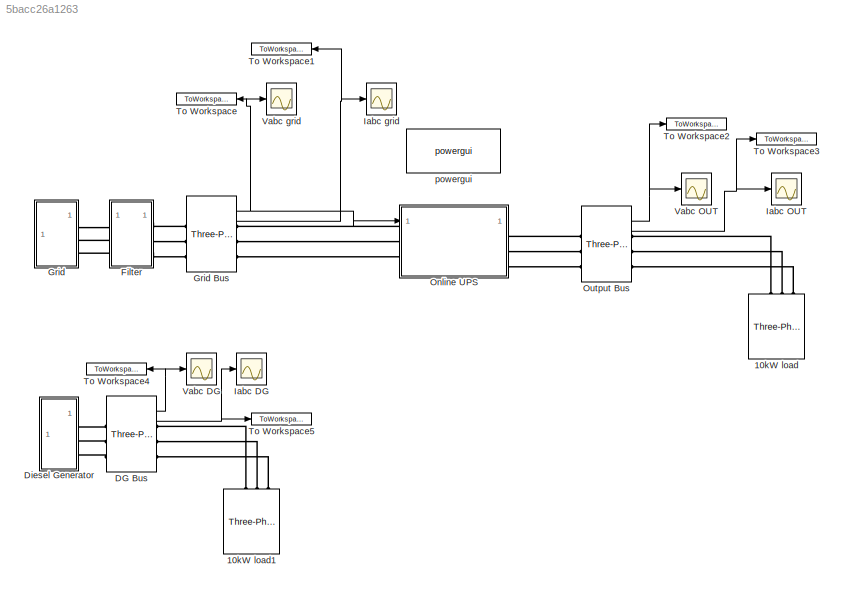
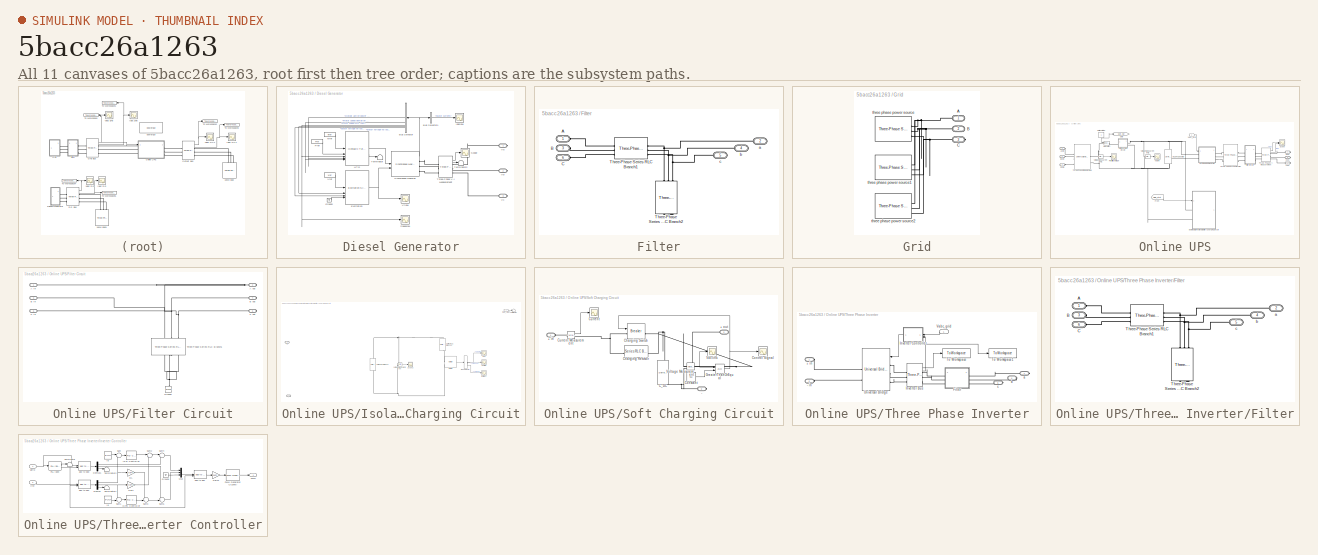
[diagram: thumbnail index - all 11 canvases of the model, root first then tree order]
MODEL slx_5bacc26a1263
KIND model
CONFIG AbsTol = auto
CONFIG EnableMultiTasking = off
CONFIG FixedStep = auto
CONFIG MaxStep = auto
CONFIG MinStep = auto
CONFIG RelTol = 1e-3
CONFIG SampleTimeConstraint = Unconstrained
CONFIG SolverName = VariableStepAuto
CONFIG StartTime = 0.0
CONFIG StopTime = 60*3
BLOCK [Reference] 10kW load  REF=spsThreePhaseSeriesRLCLoadLib/Three-Phase
Series RLC Load
  AttributesFormatString = \n
  LibrarySourceBlock = sps_lib/Passives/Three-Phase\nSeries RLC Load
  SourceBlock = spsThreePhaseSeriesRLCLoadLib/Three-Phase\nSeries RLC Load
  SourceType = Three-Phase Series RLC Load
BLOCK [Reference] 10kW load1  REF=spsThreePhaseSeriesRLCLoadLib/Three-Phase
Series RLC Load
  AttributesFormatString = \n
  LibrarySourceBlock = sps_lib/Passives/Three-Phase\nSeries RLC Load
  SourceBlock = spsThreePhaseSeriesRLCLoadLib/Three-Phase\nSeries RLC Load
  SourceType = Three-Phase Series RLC Load
BLOCK [Reference] DG Bus  REF=spsThreePhaseVIMeasurementLib/Three-Phase
V-I Measurement
  LibrarySourceBlock = sps_lib/Sensors and Measurements/Three-Phase\nV-I Measurement
  SourceBlock = spsThreePhaseVIMeasurementLib/Three-Phase\nV-I Measurement
  SourceType = Three-Phase VI Measurement
BLOCK [SubSystem] Diesel Generator
BLOCK [BusSelector] Diesel Generator/Bus Selector
  OutputSignals = Output active power   Peo (pu),Mechanical.Rotor speed deviation  dw (pu),Mechanical.Rotor speed  wm  (pu),dq0 components.Stator voltage  vd (pu),dq0 components.Stator voltage  vq (pu)
BLOCK [BusSelector] Diesel Generator/Bus Selector1
  OutputSignals = Stator current
BLOCK [Reference] Diesel Generator/Excitation   REF=spsExcitationSystemLib/Excitation System
  SourceBlock = spsExcitationSystemLib/Excitation System
  SourceType = Excitation System
BLOCK [Ground] Diesel Generator/Ground
BLOCK [Reference] Diesel Generator/HTG  REF=spsHydraulicTurbineandGovernorLib/Hydraulic Turbine
and Governor
  SourceBlock = spsHydraulicTurbineandGovernorLib/Hydraulic Turbine\nand Governor
  SourceType = Hydraulic Turbine and Governor
BLOCK [Scope] Diesel Generator/Iabc(pu)
  Floating = off
  NumInputPorts = 1
  ScopeSpecificationString = Simulink.scopes.TimeScopeBlockCfg('CurrentConfiguration', extmgr.ConfigurationSet(extmgr.Configuration('Core','General UI',true),extmgr.Configuration('Core','Source UI',true),extmgr.Configuration('Sources','WiredSimulink',true,'DataLoggingVariableName','ScopeData1'),extmgr.Configuration('Visuals','Time Domain',true,'SerializedDisplays',{struct('MinYLimReal','-0.61068','MaxYLimReal','0.87109','YLab...<+1608ch>
BLOCK [Constant] Diesel Generator/Pref
  Value = Pref
BLOCK [Scope] Diesel Generator/Scope
  Floating = off
  NumInputPorts = 1
  ScopeSpecificationString = Simulink.scopes.TimeScopeBlockCfg('CurrentConfiguration', extmgr.ConfigurationSet(extmgr.Configuration('Core','General UI',true),extmgr.Configuration('Core','Source UI',true),extmgr.Configuration('Sources','WiredSimulink',true,'DataLoggingVariableName','ScopeData1'),extmgr.Configuration('Visuals','Time Domain',true,'SerializedDisplays',{struct('MinYLimReal','-1005.62759','MaxYLimReal','1005.62609'...<+1684ch>
BLOCK [Scope] Diesel Generator/Speed(pu)
  Floating = off
  NumInputPorts = 1
  ScopeSpecificationString = Simulink.scopes.TimeScopeBlockCfg('CurrentConfiguration', extmgr.ConfigurationSet(extmgr.Configuration('Core','General UI',true),extmgr.Configuration('Core','Source UI',true),extmgr.Configuration('Sources','WiredSimulink',true,'DataLoggingVariableName','ScopeData2'),extmgr.Configuration('Visuals','Time Domain',true,'SerializedDisplays',{struct('MinYLimReal','0.99066','MaxYLimReal','1.04744','YLabe...<+1523ch>
BLOCK [Reference] Diesel Generator/Synchronous Machine   REF=spsSynchronousMachinepuStandardLib/Synchronous Machine
pu Standard
  SourceBlock = spsSynchronousMachinepuStandardLib/Synchronous Machine\npu Standard
  SourceType = Synchronous Machine
BLOCK [Terminator] Diesel Generator/Terminator
BLOCK [Terminator] Diesel Generator/Terminator2
BLOCK [Reference] Diesel Generator/Three-Phase V-I Measurement  REF=spsThreePhaseVIMeasurementLib/Three-Phase
V-I Measurement
  SourceBlock = spsThreePhaseVIMeasurementLib/Three-Phase\nV-I Measurement
  SourceType = Three-Phase VI Measurement
BLOCK [PMIOPort] Diesel Generator/Va
  Side = Right
BLOCK [PMIOPort] Diesel Generator/Vb
  Port = 2
  Side = Right
BLOCK [PMIOPort] Diesel Generator/Vc
  Port = 3
  Side = Right
BLOCK [Scope] Diesel Generator/Vf(pu)
  Floating = off
  NumInputPorts = 1
  ScopeSpecificationString = Simulink.scopes.TimeScopeBlockCfg('CurrentConfiguration', extmgr.ConfigurationSet(extmgr.Configuration('Core','General UI',true),extmgr.Configuration('Core','Source UI',true),extmgr.Configuration('Sources','WiredSimulink',true),extmgr.Configuration('Visuals','Time Domain',true,'SerializedDisplays',{struct('MinYLimReal','-0.79287','MaxYLimReal','2.36539','YLabelReal','','MinYLimMag','0.00000','MaxY...<+1495ch>
BLOCK [Constant] Diesel Generator/Vref
  Value = Vref
BLOCK [Constant] Diesel Generator/wref
  Value = wref
BLOCK [SubSystem] Filter
BLOCK [PMIOPort] Filter/A
  Side = Left
BLOCK [PMIOPort] Filter/B
  Port = 3
  Side = Left
BLOCK [PMIOPort] Filter/C
  Port = 6
  Side = Left
BLOCK [Reference] Filter/Three-Phase Series RLC Branch1  REF=spsThreePhaseSeriesRLCBranchLib/Three-Phase
Series RLC Branch
  AttributesFormatString = \n
  SourceBlock = spsThreePhaseSeriesRLCBranchLib/Three-Phase\nSeries RLC Branch
  SourceType = Three-Phase Series RLC Branch
BLOCK [Reference] Filter/Three-Phase Series RLC Branch2  REF=spsThreePhaseSeriesRLCBranchLib/Three-Phase
Series RLC Branch
  AttributesFormatString = \n
  NameLocation = left
  SourceBlock = spsThreePhaseSeriesRLCBranchLib/Three-Phase\nSeries RLC Branch
  SourceType = Three-Phase Series RLC Branch
BLOCK [PMIOPort] Filter/a
  Port = 2
  Side = Right
BLOCK [PMIOPort] Filter/b
  Port = 4
  Side = Right
BLOCK [PMIOPort] Filter/c
  Port = 5
  Side = Right
BLOCK [SubSystem] Grid
BLOCK [Reference] Grid Bus  REF=spsThreePhaseVIMeasurementLib/Three-Phase
V-I Measurement
  LibrarySourceBlock = sps_lib/Sensors and Measurements/Three-Phase\nV-I Measurement
  SourceBlock = spsThreePhaseVIMeasurementLib/Three-Phase\nV-I Measurement
  SourceType = Three-Phase VI Measurement
BLOCK [PMIOPort] Grid/A
  Side = Right
BLOCK [PMIOPort] Grid/B
  Port = 2
  Side = Right
BLOCK [PMIOPort] Grid/C
  Port = 3
  Side = Right
BLOCK [Reference] Grid/three phase power source  REF=spsThreePhaseSourceLib/Three-Phase Source
  SourceBlock = spsThreePhaseSourceLib/Three-Phase Source
  SourceType = Three-Phase Source
BLOCK [Reference] Grid/three phase power source1  REF=spsThreePhaseSourceLib/Three-Phase Source
  SourceBlock = spsThreePhaseSourceLib/Three-Phase Source
  SourceType = Three-Phase Source
BLOCK [Reference] Grid/three phase power source2  REF=spsThreePhaseSourceLib/Three-Phase Source
  SourceBlock = spsThreePhaseSourceLib/Three-Phase Source
  SourceType = Three-Phase Source
BLOCK [Scope] Iabc DG
  Floating = off
  NumInputPorts = 1
  ScopeSpecificationString = Simulink.scopes.TimeScopeBlockCfg('CurrentConfiguration', extmgr.ConfigurationSet(extmgr.Configuration('Core','General UI',true),extmgr.Configuration('Core','Source UI',true),extmgr.Configuration('Sources','WiredSimulink',true,'DataLoggingVariableName','ScopeData8'),extmgr.Configuration('Visuals','Time Domain',true,'SerializedDisplays',{struct('MinYLimReal','-4325044577405122704725519602217385984....<+1885ch>
BLOCK [Scope] Iabc OUT
  Floating = off
  NumInputPorts = 1
  ScopeSpecificationString = Simulink.scopes.TimeScopeBlockCfg('CurrentConfiguration', extmgr.ConfigurationSet(extmgr.Configuration('Core','General UI',true),extmgr.Configuration('Core','Source UI',true),extmgr.Configuration('Sources','WiredSimulink',true,'DataLoggingVariableName','ScopeData4'),extmgr.Configuration('Visuals','Time Domain',true,'SerializedDisplays',{struct('MinYLimReal','-3.27975','MaxYLimReal','3.52941','YLab...<+1611ch>
BLOCK [Scope] Iabc grid
  Floating = off
  NumInputPorts = 1
  ScopeSpecificationString = Simulink.scopes.TimeScopeBlockCfg('CurrentConfiguration', extmgr.ConfigurationSet(extmgr.Configuration('Core','General UI',true),extmgr.Configuration('Core','Source UI',true),extmgr.Configuration('Sources','WiredSimulink',true,'DataLoggingVariableName','ScopeData6'),extmgr.Configuration('Visuals','Time Domain',true,'SerializedDisplays',{struct('MinYLimReal','-53.98256','MaxYLimReal','54.02844','YL...<+1611ch>
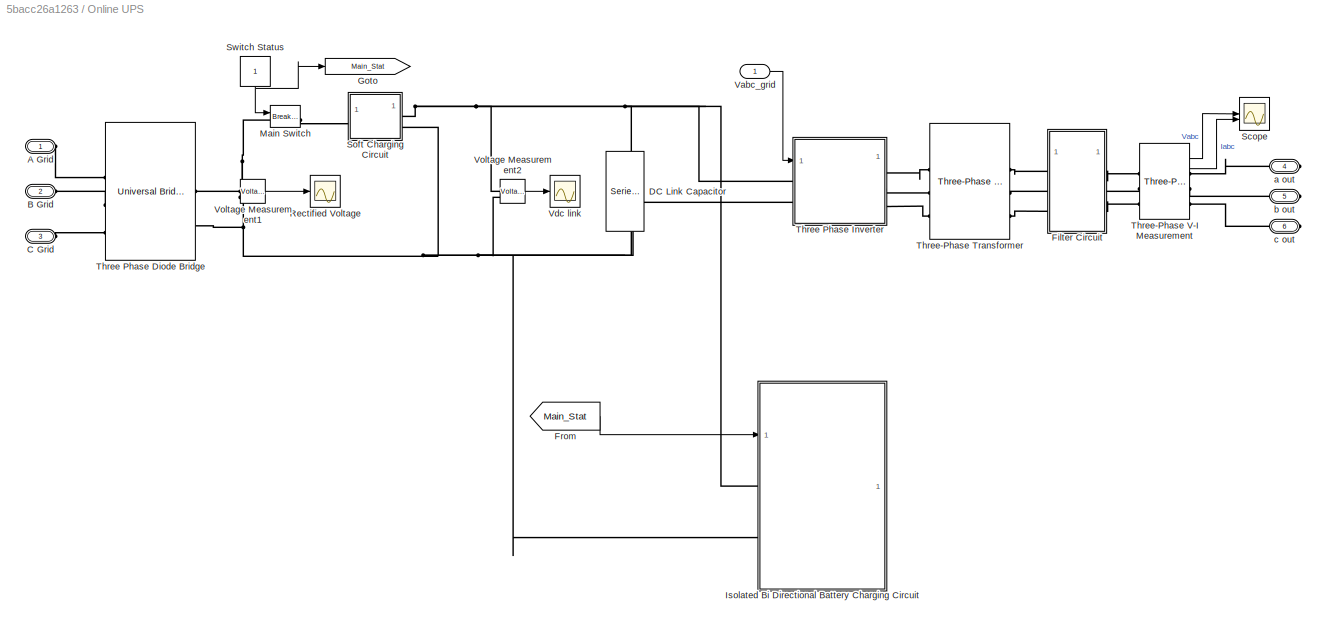
BLOCK [SubSystem] Online UPS
BLOCK [PMIOPort] Online UPS/A Grid
  Side = Left
BLOCK [PMIOPort] Online UPS/B Grid
  Port = 2
  Side = Left
BLOCK [PMIOPort] Online UPS/C Grid
  Port = 3
  Side = Left
BLOCK [Reference] Online UPS/DC Link Capacitor  REF=spsSeriesRLCBranchLib/Series RLC Branch
  LibrarySourceBlock = sps_lib/Passives/Series RLC Branch
  NameLocation = top
  SourceBlock = spsSeriesRLCBranchLib/Series RLC Branch
  SourceType = Series RLC Branch
BLOCK [SubSystem] Online UPS/Filter Circuit
BLOCK [PMIOPort] Online UPS/Filter Circuit/A in
  Side = Left
BLOCK [PMIOPort] Online UPS/Filter Circuit/A out
  Port = 2
  Side = Right
BLOCK [PMIOPort] Online UPS/Filter Circuit/B in
  Port = 3
  Side = Left
BLOCK [PMIOPort] Online UPS/Filter Circuit/B out
  Port = 4
  Side = Right
BLOCK [PMIOPort] Online UPS/Filter Circuit/C in
  Port = 5
  Side = Left
BLOCK [PMIOPort] Online UPS/Filter Circuit/C out
  Port = 6
  Side = Right
BLOCK [Reference] Online UPS/Filter Circuit/Ground  REF=spsGroundLib/Ground
  NameLocation = right
  SourceBlock = spsGroundLib/Ground
  SourceType = Ground
BLOCK [Reference] Online UPS/Filter Circuit/Three-Phase Series RLC Branch1  REF=spsThreePhaseSeriesRLCBranchLib/Three-Phase
Series RLC Branch
  AttributesFormatString = \n
  NameLocation = left
  SourceBlock = spsThreePhaseSeriesRLCBranchLib/Three-Phase\nSeries RLC Branch
  SourceType = Three-Phase Series RLC Branch
BLOCK [From] Online UPS/From
  GotoTag = Main_Stat
BLOCK [Goto] Online UPS/Goto
  GotoTag = Main_Stat
BLOCK [SubSystem] Online UPS/Isolated Bi Directional Battery Charging Circuit
BLOCK [PMIOPort] Online UPS/Isolated Bi Directional Battery Charging Circuit/+
  Side = Left
BLOCK [PMIOPort] Online UPS/Isolated Bi Directional Battery Charging Circuit/-
  Port = 2
  Side = Left
BLOCK [Reference] Online UPS/Isolated Bi Directional Battery Charging Circuit/Battery  REF=spsBatteryLib/Battery
  SourceBlock = spsBatteryLib/Battery
  SourceType = Battery
BLOCK [BusSelector] Online UPS/Isolated Bi Directional Battery Charging Circuit/Bus Selector
  OutputSignals = SOC (%),Voltage (V),Current (A)
BLOCK [Scope] Online UPS/Isolated Bi Directional Battery Charging Circuit/I battery1
  Floating = off
  NumInputPorts = 1
  ScopeSpecificationString = Simulink.scopes.TimeScopeBlockCfg('CurrentConfiguration', extmgr.ConfigurationSet(extmgr.Configuration('Core','General UI',true),extmgr.Configuration('Core','Source UI',true),extmgr.Configuration('Sources','WiredSimulink',true,'DataLoggingVariableName','ScopeData13'),extmgr.Configuration('Visuals','Time Domain',true,'SerializedDisplays',{struct('MinYLimReal','-3.28611','MaxYLimReal','7.96719','YLa...<+1562ch>
BLOCK [Inport] Online UPS/Isolated Bi Directional Battery Charging Circuit/Main_Status
BLOCK [Scope] Online UPS/Isolated Bi Directional Battery Charging Circuit/Scope2
  Floating = off
  NumInputPorts = 1
  ScopeSpecificationString = Simulink.scopes.TimeScopeBlockCfg('CurrentConfiguration', extmgr.ConfigurationSet(extmgr.Configuration('Core','General UI',true),extmgr.Configuration('Core','Source UI',true),extmgr.Configuration('Sources','WiredSimulink',true,'DataLoggingVariableName','ScopeData4'),extmgr.Configuration('Visuals','Time Domain',true,'SerializedDisplays',{struct('MinYLimReal','-3.06956','MaxYLimReal','27.62661','YLa...<+1571ch>
BLOCK [Reference] Online UPS/Isolated Bi Directional Battery Charging Circuit/Series RLC Branch  REF=spsSeriesRLCBranchLib/Series RLC Branch
  NameLocation = left
  SourceBlock = spsSeriesRLCBranchLib/Series RLC Branch
  SourceType = Series RLC Branch
BLOCK [Reference] Online UPS/Isolated Bi Directional Battery Charging Circuit/Series RLC Branch1  REF=spsSeriesRLCBranchLib/Series RLC Branch
  NameLocation = left
  SourceBlock = spsSeriesRLCBranchLib/Series RLC Branch
  SourceType = Series RLC Branch
BLOCK [Scope] Online UPS/Isolated Bi Directional Battery Charging Circuit/SoC
  Floating = off
  NumInputPorts = 1
  ScopeSpecificationString = Simulink.scopes.TimeScopeBlockCfg('CurrentConfiguration', extmgr.ConfigurationSet(extmgr.Configuration('Core','General UI',true),extmgr.Configuration('Core','Source UI',true),extmgr.Configuration('Sources','WiredSimulink',true,'DataLoggingVariableName','ScopeData2'),extmgr.Configuration('Visuals','Time Domain',true,'SerializedDisplays',{struct('MinYLimReal','34.93997','MaxYLimReal','54.90871','YLa...<+1563ch>
BLOCK [Terminator] Online UPS/Isolated Bi Directional Battery Charging Circuit/Terminator
BLOCK [Scope] Online UPS/Isolated Bi Directional Battery Charging Circuit/V battery
  Floating = off
  NumInputPorts = 1
  ScopeSpecificationString = Simulink.scopes.TimeScopeBlockCfg('CurrentConfiguration', extmgr.ConfigurationSet(extmgr.Configuration('Core','General UI',true),extmgr.Configuration('Core','Source UI',true),extmgr.Configuration('Sources','WiredSimulink',true,'DataLoggingVariableName','ScopeData6'),extmgr.Configuration('Visuals','Time Domain',true,'SerializedDisplays',{struct('MinYLimReal','-0.91723','MaxYLimReal','8.25503','YLab...<+1561ch>
BLOCK [Reference] Online UPS/Isolated Bi Directional Battery Charging Circuit/Voltage Measurement  REF=spsVoltageMeasurementLib/Voltage Measurement
  SourceBlock = spsVoltageMeasurementLib/Voltage Measurement
  SourceType = Voltage Measurement
  UserDataPersistent = on
BLOCK [Reference] Online UPS/Main Switch  REF=spsBreakerLib/Breaker
  LibrarySourceBlock = sps_lib/Power Grid Elements/Breaker
  SourceBlock = spsBreakerLib/Breaker
  SourceType = Breaker
BLOCK [Scope] Online UPS/Rectified Voltage 
  Floating = off
  NumInputPorts = 1
  ScopeSpecificationString = Simulink.scopes.TimeScopeBlockCfg('CurrentConfiguration', extmgr.ConfigurationSet(extmgr.Configuration('Core','General UI',true),extmgr.Configuration('Core','Source UI',true),extmgr.Configuration('Sources','WiredSimulink',true,'DataLoggingVariableName','ScopeData1'),extmgr.Configuration('Visuals','Time Domain',true,'SerializedDisplays',{struct('MinYLimReal','236.84004','MaxYLimReal','1518.56963','...<+1586ch>
BLOCK [Scope] Online UPS/Scope
  Floating = off
  NumInputPorts = 2
  ScopeSpecificationString = Simulink.scopes.TimeScopeBlockCfg('CurrentConfiguration', extmgr.ConfigurationSet(extmgr.Configuration('Core','General UI',true),extmgr.Configuration('Core','Source UI',true),extmgr.Configuration('Sources','WiredSimulink',true,'DataLoggingVariableName','ScopeData2'),extmgr.Configuration('Visuals','Time Domain',true,'SerializedDisplays',{struct('MinYLimReal','-413.69117','MaxYLimReal','413.38414','...<+2315ch>
BLOCK [SubSystem] Online UPS/Soft Charging Circuit
BLOCK [PMIOPort] Online UPS/Soft Charging Circuit/+ in
  Side = Left
BLOCK [PMIOPort] Online UPS/Soft Charging Circuit/+ out
  Port = 2
  Side = Right
BLOCK [PMIOPort] Online UPS/Soft Charging Circuit/-
  Port = 3
  Side = Right
BLOCK [Reference] Online UPS/Soft Charging Circuit/C_DC  REF=spsSeriesRLCBranchLib/Series RLC Branch
  NameLocation = left
  SourceBlock = spsSeriesRLCBranchLib/Series RLC Branch
  SourceType = Series RLC Branch
BLOCK [Reference] Online UPS/Soft Charging Circuit/Charging Resistor  REF=spsSeriesRLCBranchLib/Series RLC Branch
  SourceBlock = spsSeriesRLCBranchLib/Series RLC Branch
  SourceType = Series RLC Branch
BLOCK [Reference] Online UPS/Soft Charging Circuit/Charging Switch  REF=spsBreakerLib/Breaker
  SourceBlock = spsBreakerLib/Breaker
  SourceType = Breaker
BLOCK [Constant] Online UPS/Soft Charging Circuit/Constant
  Value = 450
BLOCK [Scope] Online UPS/Soft Charging Circuit/Control Signal
  Floating = off
  NumInputPorts = 1
  ScopeSpecificationString = Simulink.scopes.TimeScopeBlockCfg('CurrentConfiguration', extmgr.ConfigurationSet(extmgr.Configuration('Core','General UI',true),extmgr.Configuration('Core','Source UI',true),extmgr.Configuration('Sources','WiredSimulink',true,'DataLoggingVariableName','ScopeData5'),extmgr.Configuration('Visuals','Time Domain',true,'SerializedDisplays',{struct('MinYLimReal','-0.125','MaxYLimReal','1.125','YLabelRe...<+1554ch>
BLOCK [Scope] Online UPS/Soft Charging Circuit/Current
  Floating = off
  NumInputPorts = 1
  ScopeSpecificationString = Simulink.scopes.TimeScopeBlockCfg('CurrentConfiguration', extmgr.ConfigurationSet(extmgr.Configuration('Core','General UI',true),extmgr.Configuration('Core','Source UI',true),extmgr.Configuration('Sources','WiredSimulink',true,'DataLoggingVariableName','ScopeData1'),extmgr.Configuration('Visuals','Time Domain',true,'SerializedDisplays',{struct('MinYLimReal','-1.00000','MaxYLimReal','1.00000','YLab...<+1521ch>
BLOCK [Reference] Online UPS/Soft Charging Circuit/Current Measurement  REF=spsCurrentMeasurementLib/Current Measurement
  SourceBlock = spsCurrentMeasurementLib/Current Measurement
  SourceType = Current Measurement
  UserDataPersistent = on
BLOCK [RelationalOperator] Online UPS/Soft Charging Circuit/GreaterThanOrEqual
  InputSameDT = off
  OutDataTypeStr = boolean
  RndMeth = Simplest
BLOCK [Scope] Online UPS/Soft Charging Circuit/Vdc link
  Floating = off
  NumInputPorts = 1
  ScopeSpecificationString = Simulink.scopes.TimeScopeBlockCfg('CurrentConfiguration', extmgr.ConfigurationSet(extmgr.Configuration('Core','General UI',true),extmgr.Configuration('Core','Source UI',true),extmgr.Configuration('Sources','WiredSimulink',true,'DataLoggingVariableName','ScopeData4'),extmgr.Configuration('Visuals','Time Domain',true,'SerializedDisplays',{struct('MinYLimReal','-63.3961','MaxYLimReal','570.56492','YL...<+1575ch>
BLOCK [Reference] Online UPS/Soft Charging Circuit/Voltage Measurement  REF=spsVoltageMeasurementLib/Voltage Measurement
  SourceBlock = spsVoltageMeasurementLib/Voltage Measurement
  SourceType = Voltage Measurement
  UserDataPersistent = on
BLOCK [Constant] Online UPS/Switch Status
  NameLocation = left
BLOCK [Reference] Online UPS/Three Phase Diode Bridge  REF=spsUniversalBridgeLib/Universal Bridge
  LibrarySourceBlock = sps_lib/Power Electronics/Universal Bridge
  SourceBlock = spsUniversalBridgeLib/Universal Bridge
  SourceType = Universal Bridge
BLOCK [SubSystem] Online UPS/Three Phase Inverter
BLOCK [PMIOPort] Online UPS/Three Phase Inverter/+ in
  Side = Left
BLOCK [PMIOPort] Online UPS/Three Phase Inverter/- in
  Port = 2
  Side = Left
BLOCK [SubSystem] Online UPS/Three Phase Inverter/Filter
BLOCK [PMIOPort] Online UPS/Three Phase Inverter/Filter/A
  Side = Left
BLOCK [PMIOPort] Online UPS/Three Phase Inverter/Filter/B
  Port = 3
  Side = Left
BLOCK [PMIOPort] Online UPS/Three Phase Inverter/Filter/C
  Port = 6
  Side = Left
BLOCK [Reference] Online UPS/Three Phase Inverter/Filter/Three-Phase Series RLC Branch1  REF=spsThreePhaseSeriesRLCBranchLib/Three-Phase
Series RLC Branch
  AttributesFormatString = \n
  SourceBlock = spsThreePhaseSeriesRLCBranchLib/Three-Phase\nSeries RLC Branch
  SourceType = Three-Phase Series RLC Branch
BLOCK [Reference] Online UPS/Three Phase Inverter/Filter/Three-Phase Series RLC Branch2  REF=spsThreePhaseSeriesRLCBranchLib/Three-Phase
Series RLC Branch
  AttributesFormatString = \n
  NameLocation = left
  SourceBlock = spsThreePhaseSeriesRLCBranchLib/Three-Phase\nSeries RLC Branch
  SourceType = Three-Phase Series RLC Branch
BLOCK [PMIOPort] Online UPS/Three Phase Inverter/Filter/a
  Port = 2
  Side = Right
BLOCK [PMIOPort] Online UPS/Three Phase Inverter/Filter/b
  Port = 4
  Side = Right
BLOCK [PMIOPort] Online UPS/Three Phase Inverter/Filter/c
  Port = 5
  Side = Right
BLOCK [Reference] Online UPS/Three Phase Inverter/Inverter Bus  REF=spsThreePhaseVIMeasurementLib/Three-Phase
V-I Measurement
  SourceBlock = spsThreePhaseVIMeasurementLib/Three-Phase\nV-I Measurement
  SourceType = Three-Phase VI Measurement
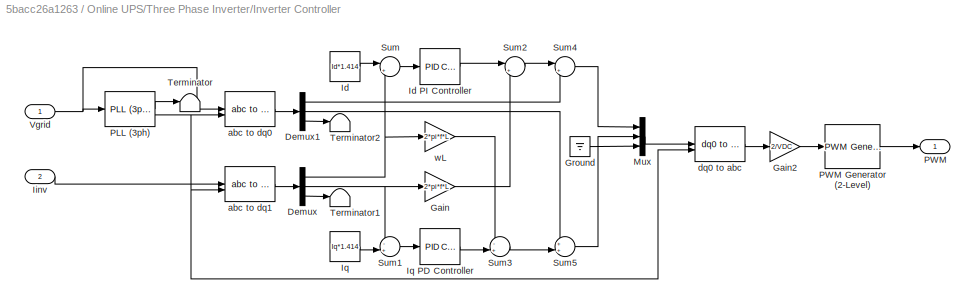
BLOCK [SubSystem] Online UPS/Three Phase Inverter/Inverter Controller
  NameLocation = top
BLOCK [Demux] Online UPS/Three Phase Inverter/Inverter Controller/Demux
  Outputs = 3
BLOCK [Demux] Online UPS/Three Phase Inverter/Inverter Controller/Demux1
  Outputs = 3
BLOCK [Gain] Online UPS/Three Phase Inverter/Inverter Controller/Gain
  Gain = 2*pi*f*L
BLOCK [Gain] Online UPS/Three Phase Inverter/Inverter Controller/Gain2
  Gain = 2/VDC
BLOCK [Ground] Online UPS/Three Phase Inverter/Inverter Controller/Ground
BLOCK [Constant] Online UPS/Three Phase Inverter/Inverter Controller/Id
  Value = Id*1.414
BLOCK [Reference] Online UPS/Three Phase Inverter/Inverter Controller/Id PI Controller  REF=slpidlib/PID Controller
  SourceBlock = slpidlib/PID Controller
  SourceType = PID 1dof
BLOCK [Inport] Online UPS/Three Phase Inverter/Inverter Controller/Iinv
  Port = 2
BLOCK [Constant] Online UPS/Three Phase Inverter/Inverter Controller/Iq
  Value = Iq*1.414
BLOCK [Reference] Online UPS/Three Phase Inverter/Inverter Controller/Iq PD Controller  REF=slpidlib/PID Controller
  SourceBlock = slpidlib/PID Controller
  SourceType = PID 1dof
BLOCK [Mux] Online UPS/Three Phase Inverter/Inverter Controller/Mux
  DisplayOption = bar
  Inputs = 3
BLOCK [Reference] Online UPS/Three Phase Inverter/Inverter Controller/PLL (3ph)  REF=spsPLL3phLib/PLL
(3ph)
  SourceBlock = spsPLL3phLib/PLL\n(3ph)
  SourceType = PLL (3ph)
BLOCK [Outport] Online UPS/Three Phase Inverter/Inverter Controller/PWM
BLOCK [Reference] Online UPS/Three Phase Inverter/Inverter Controller/PWM Generator (2-Level)  REF=spsPWMGenerator2LevelLib/PWM Generator
(2-Level)
  SourceBlock = spsPWMGenerator2LevelLib/PWM Generator\n(2-Level)
  SourceType = PWM Generator (2-Level)
BLOCK [Sum] Online UPS/Three Phase Inverter/Inverter Controller/Sum
  Inputs = |+-
BLOCK [Sum] Online UPS/Three Phase Inverter/Inverter Controller/Sum1
  Inputs = -+|
BLOCK [Sum] Online UPS/Three Phase Inverter/Inverter Controller/Sum2
  Inputs = |++
BLOCK [Sum] Online UPS/Three Phase Inverter/Inverter Controller/Sum3
  Inputs = -+|
BLOCK [Sum] Online UPS/Three Phase Inverter/Inverter Controller/Sum4
  Inputs = |++
BLOCK [Sum] Online UPS/Three Phase Inverter/Inverter Controller/Sum5
  Inputs = ++|
BLOCK [Terminator] Online UPS/Three Phase Inverter/Inverter Controller/Terminator
BLOCK [Terminator] Online UPS/Three Phase Inverter/Inverter Controller/Terminator1
BLOCK [Terminator] Online UPS/Three Phase Inverter/Inverter Controller/Terminator2
BLOCK [Inport] Online UPS/Three Phase Inverter/Inverter Controller/Vgrid
BLOCK [Reference] Online UPS/Three Phase Inverter/Inverter Controller/abc to dq0  REF=spsabctodq0Lib/abc to dq0
  SourceBlock = spsabctodq0Lib/abc to dq0
  SourceType = abc to dq0 Transformation
BLOCK [Reference] Online UPS/Three Phase Inverter/Inverter Controller/abc to dq1  REF=spsabctodq0Lib/abc to dq0
  SourceBlock = spsabctodq0Lib/abc to dq0
  SourceType = abc to dq0 Transformation
BLOCK [Reference] Online UPS/Three Phase Inverter/Inverter Controller/dq0 to abc  REF=spsdq0toabcLib/dq0 to abc
  SourceBlock = spsdq0toabcLib/dq0 to abc
  SourceType = dq0 to abc Transformation
BLOCK [Gain] Online UPS/Three Phase Inverter/Inverter Controller/wL
  Gain = 2*pi*f*L
BLOCK [ToWorkspace] Online UPS/Three Phase Inverter/To Workspace
  FixptAsFi = on
  MaxDataPoints = inf
  SampleTime = -1
  SaveFormat = Timeseries
  VariableName = V_inverter
BLOCK [ToWorkspace] Online UPS/Three Phase Inverter/To Workspace1
  FixptAsFi = on
  MaxDataPoints = inf
  SampleTime = -1
  SaveFormat = Timeseries
  VariableName = I_inverter
BLOCK [Reference] Online UPS/Three Phase Inverter/Universal Bridge  REF=spsUniversalBridgeLib/Universal Bridge
  SourceBlock = spsUniversalBridgeLib/Universal Bridge
  SourceType = Universal Bridge
BLOCK [Inport] Online UPS/Three Phase Inverter/Vabc_grid
BLOCK [PMIOPort] Online UPS/Three Phase Inverter/a
  Port = 3
  Side = Right
BLOCK [PMIOPort] Online UPS/Three Phase Inverter/b
  Port = 4
  Side = Right
BLOCK [PMIOPort] Online UPS/Three Phase Inverter/c
  Port = 5
  Side = Right
BLOCK [Reference] Online UPS/Three-Phase Transformer   REF=spsThreePhaseTransformerTwoWindingsLib/Three-Phase
Transformer
(Two Windings)
  LibrarySourceBlock = sps_lib/Power Grid Elements/Three-Phase\nTransformer\n(Two Windings)
  SourceBlock = spsThreePhaseTransformerTwoWindingsLib/Three-Phase\nTransformer\n(Two Windings)
  SourceType = Three-Phase Transformer (Two Windings)
BLOCK [Reference] Online UPS/Three-Phase V-I Measurement  REF=spsThreePhaseVIMeasurementLib/Three-Phase
V-I Measurement
  LibrarySourceBlock = sps_lib/Sensors and Measurements/Three-Phase\nV-I Measurement
  SourceBlock = spsThreePhaseVIMeasurementLib/Three-Phase\nV-I Measurement
  SourceType = Three-Phase VI Measurement
BLOCK [Inport] Online UPS/Vabc_grid
BLOCK [Scope] Online UPS/Vdc link
  Floating = off
  NumInputPorts = 1
  ScopeSpecificationString = Simulink.scopes.TimeScopeBlockCfg('CurrentConfiguration', extmgr.ConfigurationSet(extmgr.Configuration('Core','General UI',true),extmgr.Configuration('Core','Source UI',true),extmgr.Configuration('Sources','WiredSimulink',true,'DataLoggingVariableName','ScopeData3'),extmgr.Configuration('Visuals','Time Domain',true,'SerializedDisplays',{struct('MinYLimReal','-47.84754','MaxYLimReal','430.6421','YL...<+1574ch>
BLOCK [Reference] Online UPS/Voltage Measurement1  REF=spsVoltageMeasurementLib/Voltage Measurement
  LibrarySourceBlock = sps_lib/Sensors and Measurements/Voltage Measurement
  SourceBlock = spsVoltageMeasurementLib/Voltage Measurement
  SourceType = Voltage Measurement
  UserDataPersistent = on
BLOCK [Reference] Online UPS/Voltage Measurement2  REF=spsVoltageMeasurementLib/Voltage Measurement
  LibrarySourceBlock = sps_lib/Sensors and Measurements/Voltage Measurement
  SourceBlock = spsVoltageMeasurementLib/Voltage Measurement
  SourceType = Voltage Measurement
  UserDataPersistent = on
BLOCK [PMIOPort] Online UPS/a out
  Port = 4
  Side = Right
BLOCK [PMIOPort] Online UPS/b out
  Port = 5
  Side = Right
BLOCK [PMIOPort] Online UPS/c out
  Port = 6
  Side = Right
BLOCK [Reference] Output Bus  REF=spsThreePhaseVIMeasurementLib/Three-Phase
V-I Measurement
  LibrarySourceBlock = sps_lib/Sensors and Measurements/Three-Phase\nV-I Measurement
  SourceBlock = spsThreePhaseVIMeasurementLib/Three-Phase\nV-I Measurement
  SourceType = Three-Phase VI Measurement
BLOCK [ToWorkspace] To Workspace
  FixptAsFi = on
  MaxDataPoints = inf
  SampleTime = -1
  SaveFormat = Timeseries
  VariableName = V_grid
BLOCK [ToWorkspace] To Workspace1
  FixptAsFi = on
  MaxDataPoints = inf
  SampleTime = -1
  SaveFormat = Timeseries
  VariableName = I_grid
BLOCK [ToWorkspace] To Workspace2
  FixptAsFi = on
  MaxDataPoints = inf
  SampleTime = -1
  SaveFormat = Timeseries
  VariableName = V_out
BLOCK [ToWorkspace] To Workspace3
  FixptAsFi = on
  MaxDataPoints = inf
  SampleTime = -1
  SaveFormat = Timeseries
  VariableName = I_out
BLOCK [ToWorkspace] To Workspace4
  FixptAsFi = on
  MaxDataPoints = inf
  SampleTime = -1
  SaveFormat = Timeseries
  VariableName = V_DG
BLOCK [ToWorkspace] To Workspace5
  FixptAsFi = on
  MaxDataPoints = inf
  SampleTime = -1
  SaveFormat = Timeseries
  VariableName = I_DG
BLOCK [Scope] Vabc DG
  Floating = off
  NumInputPorts = 1
  ScopeSpecificationString = Simulink.scopes.TimeScopeBlockCfg('CurrentConfiguration', extmgr.ConfigurationSet(extmgr.Configuration('Core','General UI',true),extmgr.Configuration('Core','Source UI',true),extmgr.Configuration('Sources','WiredSimulink',true,'DataLoggingVariableName','ScopeData9'),extmgr.Configuration('Visuals','Time Domain',true,'SerializedDisplays',{struct('MinYLimReal','-1932.36836','MaxYLimReal','1932.36317'...<+1621ch>
BLOCK [Scope] Vabc OUT
  Floating = off
  NumInputPorts = 1
  ScopeSpecificationString = Simulink.scopes.TimeScopeBlockCfg('CurrentConfiguration', extmgr.ConfigurationSet(extmgr.Configuration('Core','General UI',true),extmgr.Configuration('Core','Source UI',true),extmgr.Configuration('Sources','WiredSimulink',true,'DataLoggingVariableName','ScopeData5'),extmgr.Configuration('Visuals','Time Domain',true,'SerializedDisplays',{struct('MinYLimReal','-341.82609','MaxYLimReal','339.27414','...<+1625ch>
BLOCK [Scope] Vabc grid
  Floating = off
  NumInputPorts = 1
  ScopeSpecificationString = Simulink.scopes.TimeScopeBlockCfg('CurrentConfiguration', extmgr.ConfigurationSet(extmgr.Configuration('Core','General UI',true),extmgr.Configuration('Core','Source UI',true),extmgr.Configuration('Sources','WiredSimulink',true,'DataLoggingVariableName','ScopeData7'),extmgr.Configuration('Visuals','Time Domain',true,'SerializedDisplays',{struct('MinYLimReal','-470.00751','MaxYLimReal','470.89491','...<+1619ch>
BLOCK [Reference] powergui  REF=spspowerguiLib/powergui
  SourceBlock = spspowerguiLib/powergui
  SourceType = PSB option menu block
NET DG Bus:1 -> To Workspace4:1, Vabc DG:1
NET DG Bus:2 -> Iabc DG:1, To Workspace5:1
LINE Diesel Generator/Bus Selector1:1 -> Diesel Generator/Iabc(pu):1
LINE Diesel Generator/Bus Selector:1 -> Diesel Generator/HTG:4
LINE Diesel Generator/Bus Selector:2 -> Diesel Generator/HTG:5
NET Diesel Generator/Bus Selector:3 -> Diesel Generator/HTG:3, Diesel Generator/Speed(pu):1
LINE Diesel Generator/Bus Selector:4 -> Diesel Generator/Excitation :2
LINE Diesel Generator/Bus Selector:5 -> Diesel Generator/Excitation :3
NET Diesel Generator/Excitation :1 -> Diesel Generator/Synchronous Machine :2, Diesel Generator/Vf(pu):1
LINE Diesel Generator/Ground:1 -> Diesel Generator/Excitation :4
LINE Diesel Generator/HTG:1 -> Diesel Generator/Synchronous Machine :1
LINE Diesel Generator/HTG:2 -> Diesel Generator/Terminator:1
LINE Diesel Generator/Pref:1 -> Diesel Generator/HTG:2
NET Diesel Generator/Synchronous Machine :1 -> Diesel Generator/Bus Selector1:1, Diesel Generator/Bus Selector:1
LINE Diesel Generator/Three-Phase V-I Measurement:1 -> Diesel Generator/Scope:1
LINE Diesel Generator/Three-Phase V-I Measurement:2 -> Diesel Generator/Terminator2:1
LINE Diesel Generator/Vref:1 -> Diesel Generator/Excitation :1
LINE Diesel Generator/wref:1 -> Diesel Generator/HTG:1
NET Grid Bus:1 -> Online UPS:1, To Workspace:1, Vabc grid:1
NET Grid Bus:2 -> Iabc grid:1, To Workspace1:1
LINE Online UPS/From:1 -> Online UPS/Isolated Bi Directional Battery Charging Circuit:1
LINE Online UPS/Isolated Bi Directional Battery Charging Circuit/Battery:1 -> Online UPS/Isolated Bi Directional Battery Charging Circuit/Bus Selector:1
LINE Online UPS/Isolated Bi Directional Battery Charging Circuit/Bus Selector:1 -> Online UPS/Isolated Bi Directional Battery Charging Circuit/SoC:1
LINE Online UPS/Isolated Bi Directional Battery Charging Circuit/Bus Selector:2 -> Online UPS/Isolated Bi Directional Battery Charging Circuit/V battery:1
LINE Online UPS/Isolated Bi Directional Battery Charging Circuit/Bus Selector:3 -> Online UPS/Isolated Bi Directional Battery Charging Circuit/I battery1:1
LINE Online UPS/Isolated Bi Directional Battery Charging Circuit/Main_Status:1 -> Online UPS/Isolated Bi Directional Battery Charging Circuit/Terminator:1
LINE Online UPS/Isolated Bi Directional Battery Charging Circuit/Voltage Measurement:1 -> Online UPS/Isolated Bi Directional Battery Charging Circuit/Scope2:1
LINE Online UPS/Soft Charging Circuit/Constant:1 -> Online UPS/Soft Charging Circuit/GreaterThanOrEqual:2
LINE Online UPS/Soft Charging Circuit/Current Measurement:1 -> Online UPS/Soft Charging Circuit/Current:1
NET Online UPS/Soft Charging Circuit/GreaterThanOrEqual:1 -> Online UPS/Soft Charging Circuit/Charging Switch:1, Online UPS/Soft Charging Circuit/Control Signal:1
NET Online UPS/Soft Charging Circuit/Voltage Measurement:1 -> Online UPS/Soft Charging Circuit/GreaterThanOrEqual:1, Online UPS/Soft Charging Circuit/Vdc link:1
NET Online UPS/Switch Status:1 -> Online UPS/Goto:1, Online UPS/Main Switch:1
LINE Online UPS/Three Phase Inverter/Inverter Bus:1 -> Online UPS/Three Phase Inverter/To Workspace:1
NET Online UPS/Three Phase Inverter/Inverter Bus:2 -> Online UPS/Three Phase Inverter/Inverter Controller:2, Online UPS/Three Phase Inverter/To Workspace1:1
LINE Online UPS/Three Phase Inverter/Inverter Controller/Demux1:1 -> Online UPS/Three Phase Inverter/Inverter Controller/Sum4:2
LINE Online UPS/Three Phase Inverter/Inverter Controller/Demux1:2 -> Online UPS/Three Phase Inverter/Inverter Controller/Sum5:1
LINE Online UPS/Three Phase Inverter/Inverter Controller/Demux1:3 -> Online UPS/Three Phase Inverter/Inverter Controller/Terminator2:1
NET Online UPS/Three Phase Inverter/Inverter Controller/Demux:1 -> Online UPS/Three Phase Inverter/Inverter Controller/Sum:2, Online UPS/Three Phase Inverter/Inverter Controller/wL:1
NET Online UPS/Three Phase Inverter/Inverter Controller/Demux:2 -> Online UPS/Three Phase Inverter/Inverter Controller/Gain:1, Online UPS/Three Phase Inverter/Inverter Controller/Sum1:1
LINE Online UPS/Three Phase Inverter/Inverter Controller/Demux:3 -> Online UPS/Three Phase Inverter/Inverter Controller/Terminator1:1
LINE Online UPS/Three Phase Inverter/Inverter Controller/Gain2:1 -> Online UPS/Three Phase Inverter/Inverter Controller/PWM Generator (2-Level):1
LINE Online UPS/Three Phase Inverter/Inverter Controller/Gain:1 -> Online UPS/Three Phase Inverter/Inverter Controller/Sum2:2
LINE Online UPS/Three Phase Inverter/Inverter Controller/Ground:1 -> Online UPS/Three Phase Inverter/Inverter Controller/Mux:3
LINE Online UPS/Three Phase Inverter/Inverter Controller/Id PI Controller:1 -> Online UPS/Three Phase Inverter/Inverter Controller/Sum2:1
LINE Online UPS/Three Phase Inverter/Inverter Controller/Id:1 -> Online UPS/Three Phase Inverter/Inverter Controller/Sum:1
LINE Online UPS/Three Phase Inverter/Inverter Controller/Iinv:1 -> Online UPS/Three Phase Inverter/Inverter Controller/abc to dq1:1
LINE Online UPS/Three Phase Inverter/Inverter Controller/Iq PD Controller:1 -> Online UPS/Three Phase Inverter/Inverter Controller/Sum3:2
LINE Online UPS/Three Phase Inverter/Inverter Controller/Iq:1 -> Online UPS/Three Phase Inverter/Inverter Controller/Sum1:2
LINE Online UPS/Three Phase Inverter/Inverter Controller/Mux:1 -> Online UPS/Three Phase Inverter/Inverter Controller/dq0 to abc:1
LINE Online UPS/Three Phase Inverter/Inverter Controller/PLL (3ph):1 -> Online UPS/Three Phase Inverter/Inverter Controller/Terminator:1
NET Online UPS/Three Phase Inverter/Inverter Controller/PLL (3ph):2 -> Online UPS/Three Phase Inverter/Inverter Controller/abc to dq0:2, Online UPS/Three Phase Inverter/Inverter Controller/abc to dq1:2, Online UPS/Three Phase Inverter/Inverter Controller/dq0 to abc:2
LINE Online UPS/Three Phase Inverter/Inverter Controller/PWM Generator (2-Level):1 -> Online UPS/Three Phase Inverter/Inverter Controller/PWM:1
LINE Online UPS/Three Phase Inverter/Inverter Controller/Sum1:1 -> Online UPS/Three Phase Inverter/Inverter Controller/Iq PD Controller:1
LINE Online UPS/Three Phase Inverter/Inverter Controller/Sum2:1 -> Online UPS/Three Phase Inverter/Inverter Controller/Sum4:1
LINE Online UPS/Three Phase Inverter/Inverter Controller/Sum3:1 -> Online UPS/Three Phase Inverter/Inverter Controller/Sum5:2
LINE Online UPS/Three Phase Inverter/Inverter Controller/Sum4:1 -> Online UPS/Three Phase Inverter/Inverter Controller/Mux:1
LINE Online UPS/Three Phase Inverter/Inverter Controller/Sum5:1 -> Online UPS/Three Phase Inverter/Inverter Controller/Mux:2
LINE Online UPS/Three Phase Inverter/Inverter Controller/Sum:1 -> Online UPS/Three Phase Inverter/Inverter Controller/Id PI Controller:1
NET Online UPS/Three Phase Inverter/Inverter Controller/Vgrid:1 -> Online UPS/Three Phase Inverter/Inverter Controller/PLL (3ph):1, Online UPS/Three Phase Inverter/Inverter Controller/abc to dq0:1
LINE Online UPS/Three Phase Inverter/Inverter Controller/abc to dq0:1 -> Online UPS/Three Phase Inverter/Inverter Controller/Demux1:1
LINE Online UPS/Three Phase Inverter/Inverter Controller/abc to dq1:1 -> Online UPS/Three Phase Inverter/Inverter Controller/Demux:1
LINE Online UPS/Three Phase Inverter/Inverter Controller/dq0 to abc:1 -> Online UPS/Three Phase Inverter/Inverter Controller/Gain2:1
LINE Online UPS/Three Phase Inverter/Inverter Controller/wL:1 -> Online UPS/Three Phase Inverter/Inverter Controller/Sum3:1
LINE Online UPS/Three Phase Inverter/Inverter Controller:1 -> Online UPS/Three Phase Inverter/Universal Bridge:1
LINE Online UPS/Three Phase Inverter/Vabc_grid:1 -> Online UPS/Three Phase Inverter/Inverter Controller:1
LINE Online UPS/Three-Phase V-I Measurement:1 -> Online UPS/Scope:1
LINE Online UPS/Three-Phase V-I Measurement:2 -> Online UPS/Scope:2
LINE Online UPS/Vabc_grid:1 -> Online UPS/Three Phase Inverter:1
LINE Online UPS/Voltage Measurement1:1 -> Online UPS/Rectified Voltage :1
LINE Online UPS/Voltage Measurement2:1 -> Online UPS/Vdc link:1
NET Output Bus:1 -> To Workspace2:1, Vabc OUT:1
NET Output Bus:2 -> Iabc OUT:1, To Workspace3:1
PLINE 10kW load1:LConn1 -- DG Bus:RConn1
PLINE 10kW load1:LConn2 -- DG Bus:RConn2
PLINE 10kW load1:LConn3 -- DG Bus:RConn3
PLINE 10kW load:LConn1 -- Output Bus:RConn1
PLINE 10kW load:LConn2 -- Output Bus:RConn2
PLINE 10kW load:LConn3 -- Output Bus:RConn3
PLINE DG Bus:LConn1 -- Diesel Generator:RConn1
PLINE DG Bus:LConn2 -- Diesel Generator:RConn2
PLINE DG Bus:LConn3 -- Diesel Generator:RConn3
PLINE Diesel Generator/Synchronous Machine :RConn1 -- Diesel Generator/Three-Phase V-I Measurement:LConn1
PLINE Diesel Generator/Synchronous Machine :RConn2 -- Diesel Generator/Three-Phase V-I Measurement:LConn2
PLINE Diesel Generator/Synchronous Machine :RConn3 -- Diesel Generator/Three-Phase V-I Measurement:LConn3
PLINE Diesel Generator/Three-Phase V-I Measurement:RConn1 -- Diesel Generator/Va:RConn1
PLINE Diesel Generator/Three-Phase V-I Measurement:RConn2 -- Diesel Generator/Vb:RConn1
PLINE Diesel Generator/Three-Phase V-I Measurement:RConn3 -- Diesel Generator/Vc:RConn1
PLINE Filter/A:RConn1 -- Filter/Three-Phase Series RLC Branch1:LConn1
PLINE Filter/B:RConn1 -- Filter/Three-Phase Series RLC Branch1:LConn2
PLINE Filter/C:RConn1 -- Filter/Three-Phase Series RLC Branch1:LConn3
PNET net1: Filter/Three-Phase Series RLC Branch1:RConn1 -- Filter/Three-Phase Series RLC Branch2:LConn1 -- Filter/a:RConn1
PNET net2: Filter/Three-Phase Series RLC Branch1:RConn2 -- Filter/Three-Phase Series RLC Branch2:LConn2 -- Filter/b:RConn1
PNET net3: Filter/Three-Phase Series RLC Branch1:RConn3 -- Filter/Three-Phase Series RLC Branch2:LConn3 -- Filter/c:RConn1
PNET net4: Filter/Three-Phase Series RLC Branch2:RConn1 -- Filter/Three-Phase Series RLC Branch2:RConn2 -- Filter/Three-Phase Series RLC Branch2:RConn3
PLINE Filter:LConn1 -- Grid:RConn1
PLINE Filter:LConn2 -- Grid:RConn2
PLINE Filter:LConn3 -- Grid:RConn3
PLINE Filter:RConn1 -- Grid Bus:LConn1
PLINE Filter:RConn2 -- Grid Bus:LConn2
PLINE Filter:RConn3 -- Grid Bus:LConn3
PLINE Grid Bus:RConn1 -- Online UPS:LConn1
PLINE Grid Bus:RConn2 -- Online UPS:LConn2
PLINE Grid Bus:RConn3 -- Online UPS:LConn3
PNET net5: Grid/A:RConn1 -- Grid/three phase power source1:RConn1 -- Grid/three phase power source2:RConn1 -- Grid/three phase power source:RConn1
PNET net6: Grid/B:RConn1 -- Grid/three phase power source1:RConn2 -- Grid/three phase power source2:RConn2 -- Grid/three phase power source:RConn2
PNET net7: Grid/C:RConn1 -- Grid/three phase power source1:RConn3 -- Grid/three phase power source2:RConn3 -- Grid/three phase power source:RConn3
PLINE Online UPS/A Grid:RConn1 -- Online UPS/Three Phase Diode Bridge:LConn1
PLINE Online UPS/B Grid:RConn1 -- Online UPS/Three Phase Diode Bridge:LConn2
PLINE Online UPS/C Grid:RConn1 -- Online UPS/Three Phase Diode Bridge:LConn3
PNET net8: Online UPS/DC Link Capacitor:LConn1 -- Online UPS/Isolated Bi Directional Battery Charging Circuit:LConn1 -- Online UPS/Soft Charging Circuit:RConn1 -- Online UPS/Three Phase Inverter:LConn1 -- Online UPS/Voltage Measurement2:LConn1
PNET net9: Online UPS/DC Link Capacitor:RConn1 -- Online UPS/Isolated Bi Directional Battery Charging Circuit:LConn2 -- Online UPS/Soft Charging Circuit:RConn2 -- Online UPS/Three Phase Diode Bridge:RConn2 -- Online UPS/Three Phase Inverter:LConn2 -- Online UPS/Voltage Measurement1:LConn2 -- Online UPS/Voltage Measurement2:LConn2
PNET net10: Online UPS/Filter Circuit/A in:RConn1 -- Online UPS/Filter Circuit/A out:RConn1 -- Online UPS/Filter Circuit/Three-Phase Series RLC Branch1:LConn1
PNET net11: Online UPS/Filter Circuit/B in:RConn1 -- Online UPS/Filter Circuit/B out:RConn1 -- Online UPS/Filter Circuit/Three-Phase Series RLC Branch1:LConn2
PNET net12: Online UPS/Filter Circuit/C in:RConn1 -- Online UPS/Filter Circuit/C out:RConn1 -- Online UPS/Filter Circuit/Three-Phase Series RLC Branch1:LConn3
PNET net13: Online UPS/Filter Circuit/Ground:LConn1 -- Online UPS/Filter Circuit/Three-Phase Series RLC Branch1:RConn1 -- Online UPS/Filter Circuit/Three-Phase Series RLC Branch1:RConn2 -- Online UPS/Filter Circuit/Three-Phase Series RLC Branch1:RConn3
PLINE Online UPS/Filter Circuit:LConn1 -- Online UPS/Three-Phase Transformer :RConn1
PLINE Online UPS/Filter Circuit:LConn2 -- Online UPS/Three-Phase Transformer :RConn2
PLINE Online UPS/Filter Circuit:LConn3 -- Online UPS/Three-Phase Transformer :RConn3
PLINE Online UPS/Filter Circuit:RConn1 -- Online UPS/Three-Phase V-I Measurement:LConn1
PLINE Online UPS/Filter Circuit:RConn2 -- Online UPS/Three-Phase V-I Measurement:LConn2
PLINE Online UPS/Filter Circuit:RConn3 -- Online UPS/Three-Phase V-I Measurement:LConn3
PLINE Online UPS/Isolated Bi Directional Battery Charging Circuit/Battery:LConn1 -- Online UPS/Isolated Bi Directional Battery Charging Circuit/Series RLC Branch1:RConn1
PNET net14: Online UPS/Isolated Bi Directional Battery Charging Circuit/Battery:LConn2 -- Online UPS/Isolated Bi Directional Battery Charging Circuit/Series RLC Branch:RConn1 -- Online UPS/Isolated Bi Directional Battery Charging Circuit/Voltage Measurement:LConn2
PNET net15: Online UPS/Isolated Bi Directional Battery Charging Circuit/Series RLC Branch1:LConn1 -- Online UPS/Isolated Bi Directional Battery Charging Circuit/Series RLC Branch:LConn1 -- Online UPS/Isolated Bi Directional Battery Charging Circuit/Voltage Measurement:LConn1
PNET net16: Online UPS/Main Switch:LConn1 -- Online UPS/Three Phase Diode Bridge:RConn1 -- Online UPS/Voltage Measurement1:LConn1
PLINE Online UPS/Main Switch:RConn1 -- Online UPS/Soft Charging Circuit:LConn1
PLINE Online UPS/Soft Charging Circuit/+ in:RConn1 -- Online UPS/Soft Charging Circuit/Current Measurement:LConn1
PNET net17: Online UPS/Soft Charging Circuit/+ out:RConn1 -- Online UPS/Soft Charging Circuit/C_DC:LConn1 -- Online UPS/Soft Charging Circuit/Charging Resistor:RConn1 -- Online UPS/Soft Charging Circuit/Charging Switch:RConn1 -- Online UPS/Soft Charging Circuit/Voltage Measurement:LConn1
PNET net18: Online UPS/Soft Charging Circuit/-:RConn1 -- Online UPS/Soft Charging Circuit/C_DC:RConn1 -- Online UPS/Soft Charging Circuit/Voltage Measurement:LConn2
PNET net19: Online UPS/Soft Charging Circuit/Charging Resistor:LConn1 -- Online UPS/Soft Charging Circuit/Charging Switch:LConn1 -- Online UPS/Soft Charging Circuit/Current Measurement:RConn1
PLINE Online UPS/Three Phase Inverter/+ in:RConn1 -- Online UPS/Three Phase Inverter/Universal Bridge:RConn1
PLINE Online UPS/Three Phase Inverter/- in:RConn1 -- Online UPS/Three Phase Inverter/Universal Bridge:RConn2
PLINE Online UPS/Three Phase Inverter/Filter/A:RConn1 -- Online UPS/Three Phase Inverter/Filter/Three-Phase Series RLC Branch1:LConn1
PLINE Online UPS/Three Phase Inverter/Filter/B:RConn1 -- Online UPS/Three Phase Inverter/Filter/Three-Phase Series RLC Branch1:LConn2
PLINE Online UPS/Three Phase Inverter/Filter/C:RConn1 -- Online UPS/Three Phase Inverter/Filter/Three-Phase Series RLC Branch1:LConn3
PNET net20: Online UPS/Three Phase Inverter/Filter/Three-Phase Series RLC Branch1:RConn1 -- Online UPS/Three Phase Inverter/Filter/Three-Phase Series RLC Branch2:LConn1 -- Online UPS/Three Phase Inverter/Filter/a:RConn1
PNET net21: Online UPS/Three Phase Inverter/Filter/Three-Phase Series RLC Branch1:RConn2 -- Online UPS/Three Phase Inverter/Filter/Three-Phase Series RLC Branch2:LConn2 -- Online UPS/Three Phase Inverter/Filter/b:RConn1
PNET net22: Online UPS/Three Phase Inverter/Filter/Three-Phase Series RLC Branch1:RConn3 -- Online UPS/Three Phase Inverter/Filter/Three-Phase Series RLC Branch2:LConn3 -- Online UPS/Three Phase Inverter/Filter/c:RConn1
PNET net23: Online UPS/Three Phase Inverter/Filter/Three-Phase Series RLC Branch2:RConn1 -- Online UPS/Three Phase Inverter/Filter/Three-Phase Series RLC Branch2:RConn2 -- Online UPS/Three Phase Inverter/Filter/Three-Phase Series RLC Branch2:RConn3
PLINE Online UPS/Three Phase Inverter/Filter:LConn1 -- Online UPS/Three Phase Inverter/Inverter Bus:RConn1
PLINE Online UPS/Three Phase Inverter/Filter:LConn2 -- Online UPS/Three Phase Inverter/Inverter Bus:RConn2
PLINE Online UPS/Three Phase Inverter/Filter:LConn3 -- Online UPS/Three Phase Inverter/Inverter Bus:RConn3
PLINE Online UPS/Three Phase Inverter/Filter:RConn1 -- Online UPS/Three Phase Inverter/a:RConn1
PLINE Online UPS/Three Phase Inverter/Filter:RConn2 -- Online UPS/Three Phase Inverter/b:RConn1
PLINE Online UPS/Three Phase Inverter/Filter:RConn3 -- Online UPS/Three Phase Inverter/c:RConn1
PLINE Online UPS/Three Phase Inverter/Inverter Bus:LConn1 -- Online UPS/Three Phase Inverter/Universal Bridge:LConn1
PLINE Online UPS/Three Phase Inverter/Inverter Bus:LConn2 -- Online UPS/Three Phase Inverter/Universal Bridge:LConn2
PLINE Online UPS/Three Phase Inverter/Inverter Bus:LConn3 -- Online UPS/Three Phase Inverter/Universal Bridge:LConn3
PLINE Online UPS/Three Phase Inverter:RConn1 -- Online UPS/Three-Phase Transformer :LConn1
PLINE Online UPS/Three Phase Inverter:RConn2 -- Online UPS/Three-Phase Transformer :LConn2
PLINE Online UPS/Three Phase Inverter:RConn3 -- Online UPS/Three-Phase Transformer :LConn3
PLINE Online UPS/Three-Phase V-I Measurement:RConn1 -- Online UPS/a out:RConn1
PLINE Online UPS/Three-Phase V-I Measurement:RConn2 -- Online UPS/b out:RConn1
PLINE Online UPS/Three-Phase V-I Measurement:RConn3 -- Online UPS/c out:RConn1
PLINE Online UPS:RConn1 -- Output Bus:LConn1
PLINE Online UPS:RConn2 -- Output Bus:LConn2
PLINE Online UPS:RConn3 -- Output Bus:LConn3
note: NET lines group one-source signal fan-out (src -> all destinations, sorted); 1:1 wires keep LINE; PNET lines group multi-terminal physical nets as a canonical sorted terminal list (undirected conserving connections); 2-terminal nets keep the pairwise PLINE form
